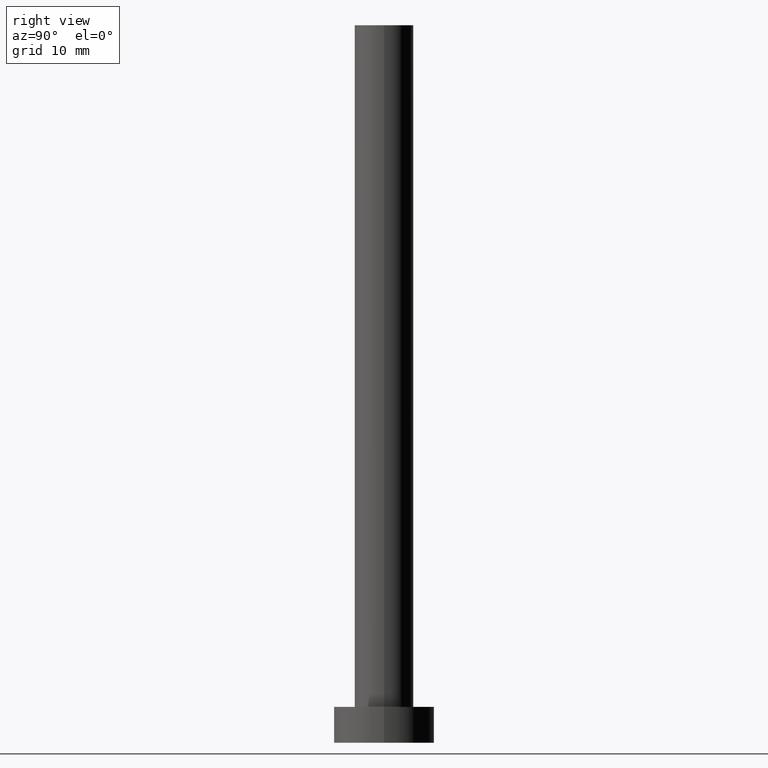
[diagram: clean part render]
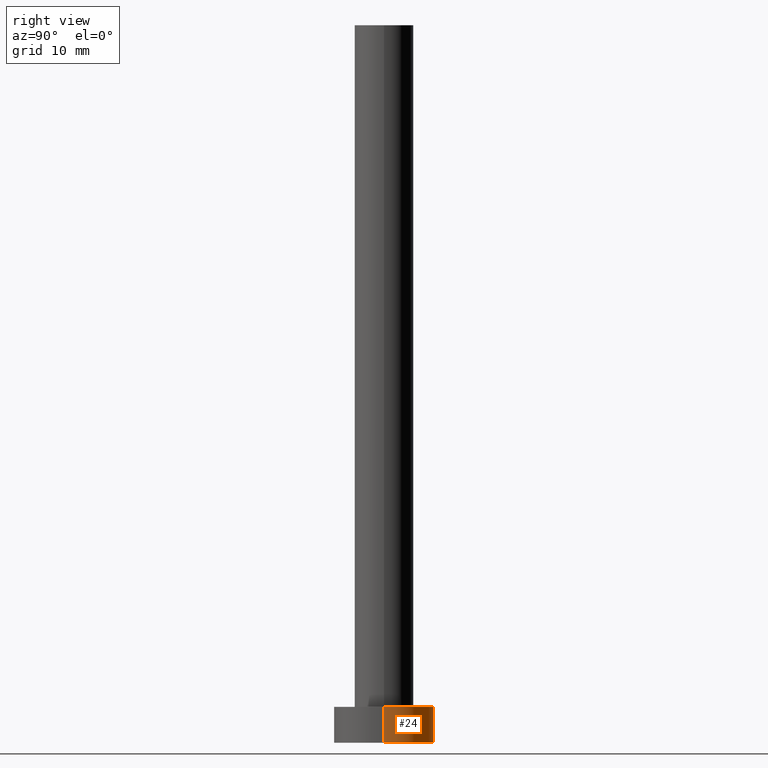
[diagram: same view with one face highlighted and labeled with its STEP entity id]
A machine part, right view. The second image highlights one B-rep face of the part: STEP entity #24.
In plain terms, the highlighted cylindrical surface (partial cylindrical patch) has radius 7 mm, axis along (-0, -0, -1).
Its self-contained STEP definition (entity closure, byte-faithful):
#12 = VECTOR ( 'NONE', #202, 1000.000000000000000 ) ;
#17 = ORIENTED_EDGE ( 'NONE', *, *, #210, .F. ) ;
#22 = VECTOR ( 'NONE', #44, 1000.000000000000000 ) ;
#24 = ADVANCED_FACE ( 'NONE', ( #175 ), #212, .T. ) ;
#26 = CARTESIAN_POINT ( 'NONE',  ( 7.000000000000000000, 8.572527594031473190E-16, 5.000000000000000000 ) ) ;
#43 = CARTESIAN_POINT ( 'NONE',  ( 7.000000000000000000, 8.572527594031473190E-16, 5.000000000000000000 ) ) ;
#44 = DIRECTION ( 'NONE',  ( -0.000000000000000000, -0.000000000000000000, -1.000000000000000000 ) ) ;
#51 = VERTEX_POINT ( 'NONE', #118 ) ;
#56 = DIRECTION ( 'NONE',  ( -1.000000000000000000, 0.000000000000000000, 0.000000000000000000 ) ) ;
#57 = VERTEX_POINT ( 'NONE', #197 ) ;
#60 = EDGE_CURVE ( 'NONE', #51, #57, #252, .T. ) ;
#69 = EDGE_CURVE ( 'NONE', #155, #51, #160, .T. ) ;
#74 = ORIENTED_EDGE ( 'NONE', *, *, #60, .T. ) ;
#85 = CARTESIAN_POINT ( 'NONE',  ( -7.000000000000000000, 0.000000000000000000, 5.000000000000000000 ) ) ;
#93 = ORIENTED_EDGE ( 'NONE', *, *, #248, .F. ) ;
#100 = AXIS2_PLACEMENT_3D ( 'NONE', #123, #200, #203 ) ;
#117 = AXIS2_PLACEMENT_3D ( 'NONE', #255, #172, #56 ) ;
#118 = CARTESIAN_POINT ( 'NONE',  ( 7.000000000000000000, 8.572527594031473190E-16, 0.000000000000000000 ) ) ;
#123 = CARTESIAN_POINT ( 'NONE',  ( 0.000000000000000000, 0.000000000000000000, 5.000000000000000000 ) ) ;
#130 = DIRECTION ( 'NONE',  ( 0.000000000000000000, 0.000000000000000000, 1.000000000000000000 ) ) ;
#150 = EDGE_LOOP ( 'NONE', ( #17, #154, #74, #93 ) ) ;
#154 = ORIENTED_EDGE ( 'NONE', *, *, #69, .T. ) ;
#155 = VERTEX_POINT ( 'NONE', #43 ) ;
#160 = LINE ( 'NONE', #26, #12 ) ;
#164 = CARTESIAN_POINT ( 'NONE',  ( -7.000000000000000000, 0.000000000000000000, 5.000000000000000000 ) ) ;
#172 = DIRECTION ( 'NONE',  ( -0.000000000000000000, -0.000000000000000000, -1.000000000000000000 ) ) ;
#175 = FACE_OUTER_BOUND ( 'NONE', #150, .T. ) ;
#182 = LINE ( 'NONE', #85, #22 ) ;
#197 = CARTESIAN_POINT ( 'NONE',  ( -7.000000000000000000, 0.000000000000000000, 0.000000000000000000 ) ) ;
#200 = DIRECTION ( 'NONE',  ( 0.000000000000000000, 0.000000000000000000, 1.000000000000000000 ) ) ;
#202 = DIRECTION ( 'NONE',  ( -0.000000000000000000, -0.000000000000000000, -1.000000000000000000 ) ) ;
#203 = DIRECTION ( 'NONE',  ( 1.000000000000000000, 0.000000000000000000, 0.000000000000000000 ) ) ;
#210 = EDGE_CURVE ( 'NONE', #155, #251, #229, .T. ) ;
#211 = AXIS2_PLACEMENT_3D ( 'NONE', #231, #130, #219 ) ;
#212 = CYLINDRICAL_SURFACE ( 'NONE', #117, 7.000000000000000000 ) ;
#219 = DIRECTION ( 'NONE',  ( 1.000000000000000000, 0.000000000000000000, 0.000000000000000000 ) ) ;
#229 = CIRCLE ( 'NONE', #100, 7.000000000000000000 ) ;
#231 = CARTESIAN_POINT ( 'NONE',  ( 0.000000000000000000, 0.000000000000000000, 0.000000000000000000 ) ) ;
#248 = EDGE_CURVE ( 'NONE', #251, #57, #182, .T. ) ;
#251 = VERTEX_POINT ( 'NONE', #164 ) ;
#252 = CIRCLE ( 'NONE', #211, 7.000000000000000000 ) ;
#255 = CARTESIAN_POINT ( 'NONE',  ( 0.000000000000000000, 0.000000000000000000, 5.000000000000000000 ) ) ;